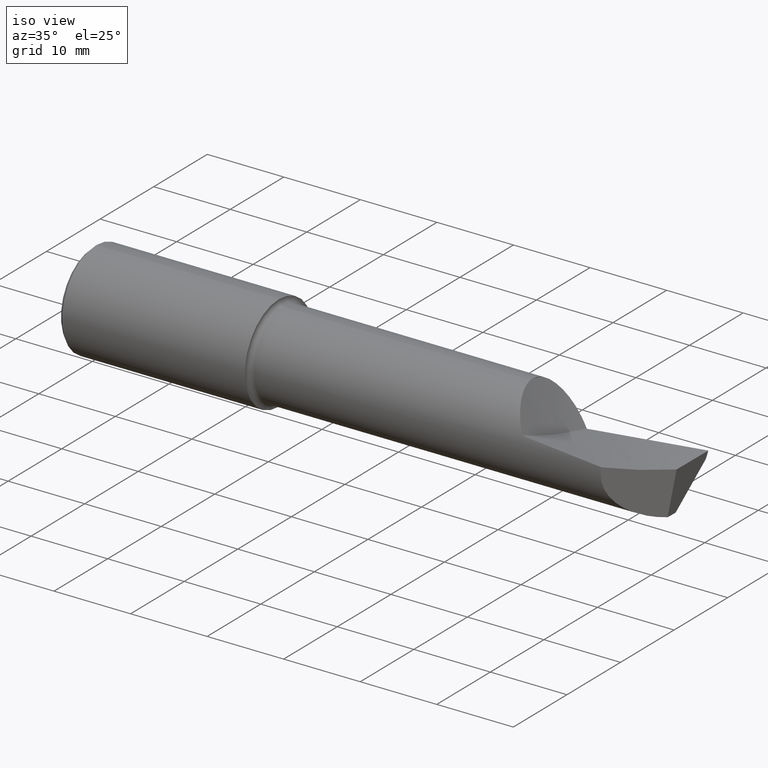
[diagram: clean part render]
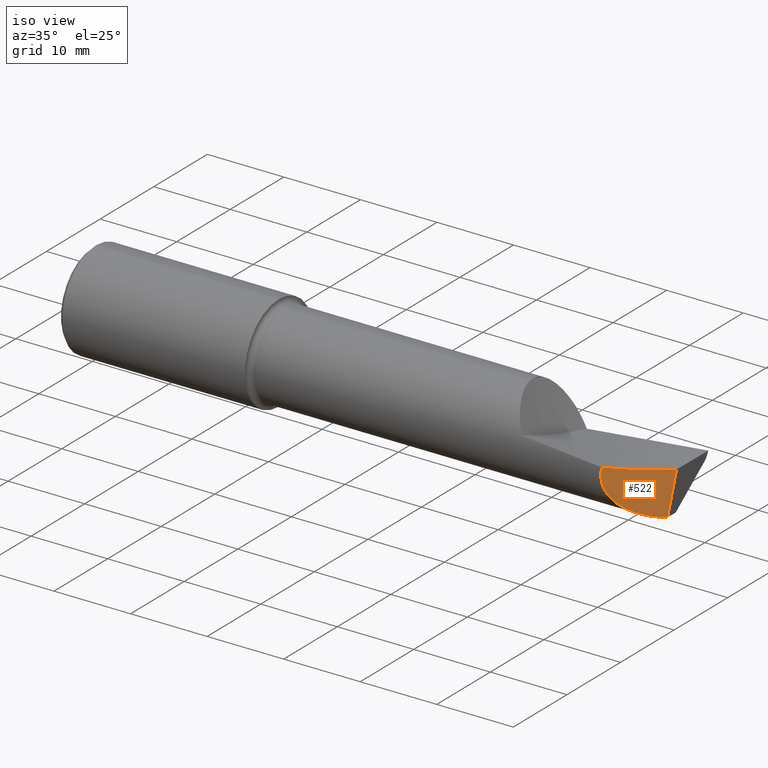
[diagram: same view with one face highlighted and labeled with its STEP entity id]
A machine part, iso view. The second image highlights one B-rep face of the part: STEP entity #522.
In plain terms, the highlighted planar face has unit normal (-0.7071, 0.7071, 0).
Its self-contained STEP definition (entity closure, byte-faithful):
#22 = CARTESIAN_POINT ( 'NONE',  ( 2.748939529771277979, -0.2394126230373499198, -0.1000115783150166138 ) ) ;
#44 = EDGE_LOOP ( 'NONE', ( #744, #490, #121 ) ) ;
#49 = EDGE_CURVE ( 'NONE', #518, #754, #505, .T. ) ;
#62 = CARTESIAN_POINT ( 'NONE',  ( 2.970822649411938077, -0.01752950339669018254, -0.2193005164395774864 ) ) ;
#68 = AXIS2_PLACEMENT_3D ( 'NONE', #203, #211, #558 ) ;
#121 = ORIENTED_EDGE ( 'NONE', *, *, #156, .T. ) ;
#156 = EDGE_CURVE ( 'NONE', #439, #518, #479, .T. ) ;
#165 = CARTESIAN_POINT ( 'NONE',  ( 2.960702989773093652, -0.02764916303553413557, -0.3009961683226821672 ) ) ;
#188 = CARTESIAN_POINT ( 'NONE',  ( 2.846075425691748428, -0.1422767271168798586, 0.01425986872581100004 ) ) ;
#203 = CARTESIAN_POINT ( 'NONE',  ( 2.754857864376268672, -0.2334942884323585599, -0.2500000000000000555 ) ) ;
#204 = CARTESIAN_POINT ( 'NONE',  ( 2.833707386268460748, -0.1546447665401669003, -0.2083403850635354160 ) ) ;
#207 = EDGE_CURVE ( 'NONE', #754, #439, #503, .T. ) ;
#211 = DIRECTION ( 'NONE',  ( -0.7071067811865462405, 0.7071067811865489050, 0.000000000000000000 ) ) ;
#252 = CARTESIAN_POINT ( 'NONE',  ( 2.970822649411938077, -0.01752950339669018254, -0.2193005164395774864 ) ) ;
#364 = CARTESIAN_POINT ( 'NONE',  ( 2.771270714435557725, -0.2170814383730694797, 0.03571623039850647247 ) ) ;
#422 = CARTESIAN_POINT ( 'NONE',  ( 2.771270714435557725, -0.2170814383730694797, 0.03571623039850647247 ) ) ;
#439 = VERTEX_POINT ( 'NONE', #585 ) ;
#479 = B_SPLINE_CURVE_WITH_KNOTS ( 'NONE', 3,
 ( #485, #717, #188, #422 ),
 .UNSPECIFIED., .F., .F.,
 ( 4, 4 ),
 ( 7.367693421357766252E-05, 0.008267352743947886315 ),
 .UNSPECIFIED. ) ;
#485 = CARTESIAN_POINT ( 'NONE',  ( 2.997941307501976294, 0.009589154693347746311, -0.0003725554249013139489 ) ) ;
#490 = ORIENTED_EDGE ( 'NONE', *, *, #207, .T. ) ;
#503 = LINE ( 'NONE', #165, #569 ) ;
#505 =( BOUNDED_CURVE ( )  B_SPLINE_CURVE ( 3, ( #364, #22, #204, #252 ),
 .UNSPECIFIED., .F., .T. ) 
 B_SPLINE_CURVE_WITH_KNOTS ( ( 4, 4 ),
 ( 6.120117067556848589, 7.774217519258906250 ),
 .UNSPECIFIED. ) 
 CURVE ( )  GEOMETRIC_REPRESENTATION_ITEM ( )  RATIONAL_B_SPLINE_CURVE ( ( 1.000000000000000000, 0.7846997011302692115, 0.7846997011302692115, 1.000000000000000000 ) ) 
 REPRESENTATION_ITEM ( '' )  );
#507 = FACE_OUTER_BOUND ( 'NONE', #44, .T. ) ;
#518 = VERTEX_POINT ( 'NONE', #713 ) ;
#522 = ADVANCED_FACE ( 'NONE', ( #507 ), #738, .F. ) ;
#558 = DIRECTION ( 'NONE',  ( -0.7071067811865487940, -0.7071067811865461294, 0.000000000000000000 ) ) ;
#569 = VECTOR ( 'NONE', #572, 39.37007874015748854 ) ;
#572 = DIRECTION ( 'NONE',  ( 0.1220122463319276707, 0.1220122463319272127, 0.9850005195379716305 ) ) ;
#585 = CARTESIAN_POINT ( 'NONE',  ( 2.997941307501976294, 0.009589154693347746311, -0.0003725554249013139489 ) ) ;
#713 = CARTESIAN_POINT ( 'NONE',  ( 2.771270714435557725, -0.2170814383730694797, 0.03571623039850647247 ) ) ;
#717 = CARTESIAN_POINT ( 'NONE',  ( 2.921631811082995522, -0.06672034172563212628, 0.002224270572586053204 ) ) ;
#738 = PLANE ( 'NONE',  #68 ) ;
#744 = ORIENTED_EDGE ( 'NONE', *, *, #49, .T. ) ;
#754 = VERTEX_POINT ( 'NONE', #62 ) ;